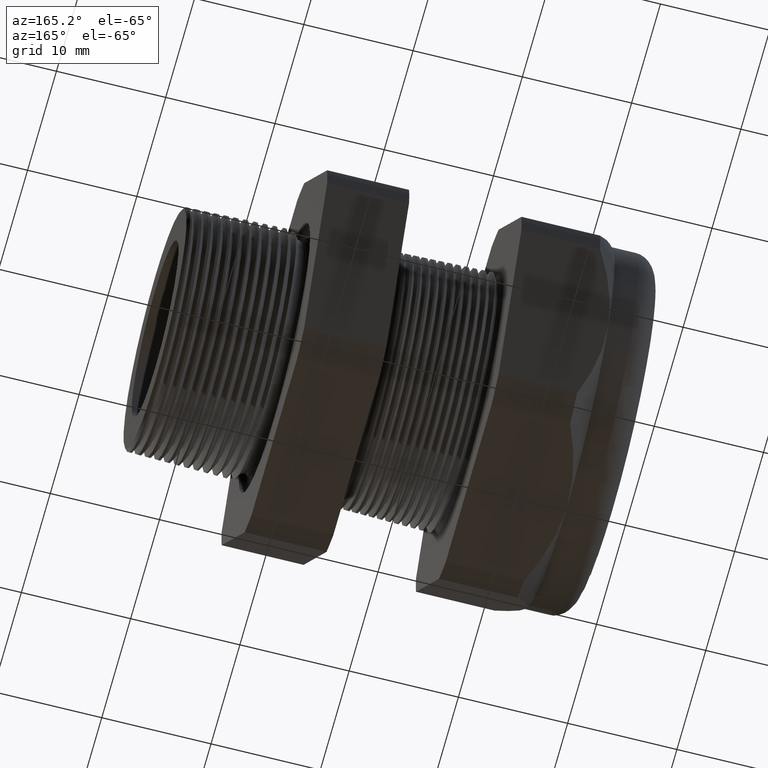
[diagram: clean part render]
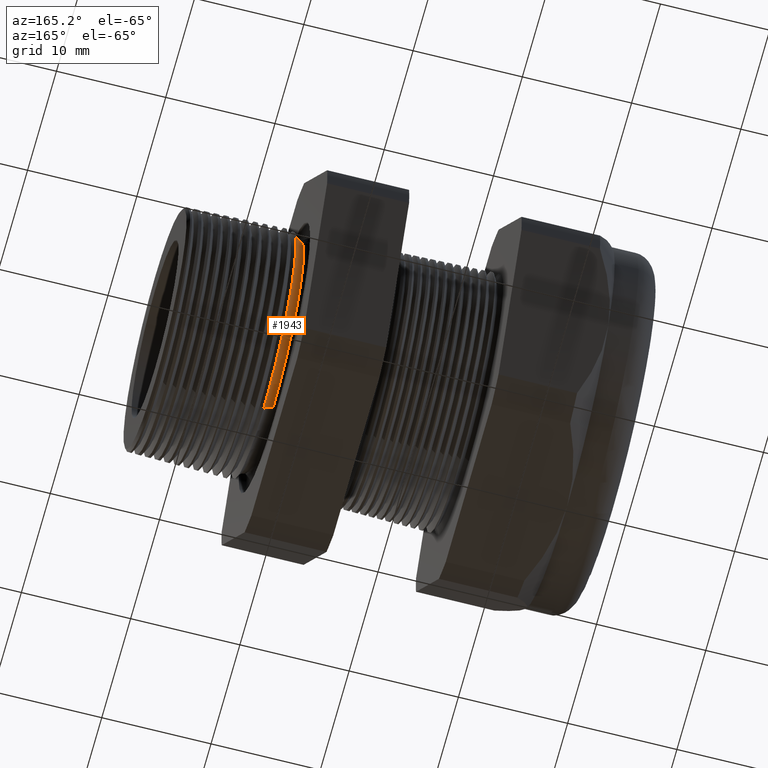
[diagram: same view with one face highlighted and labeled with its STEP entity id]
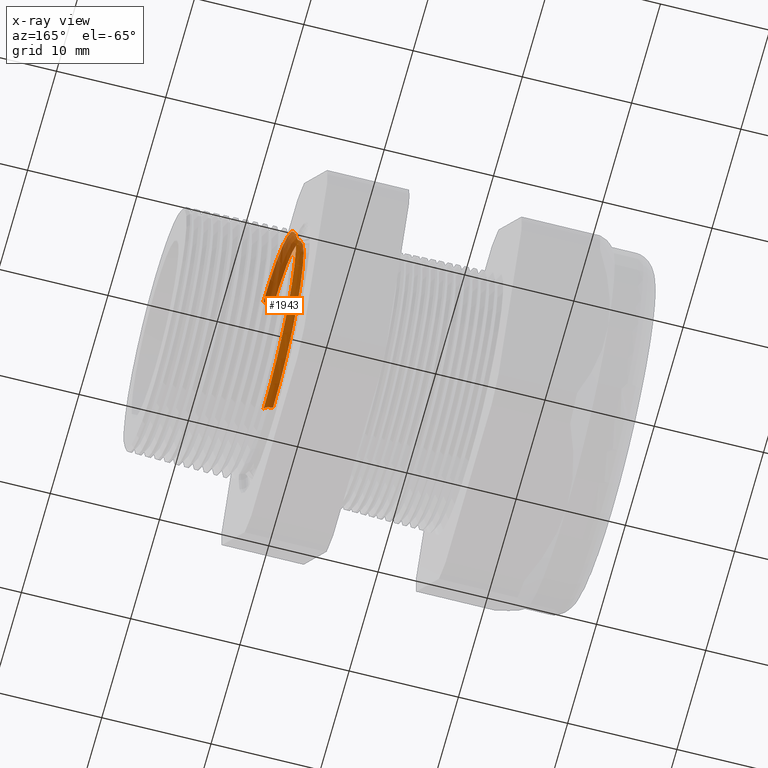
[diagram: x-ray of the same camera — body ghosted, the highlighted face saturated]
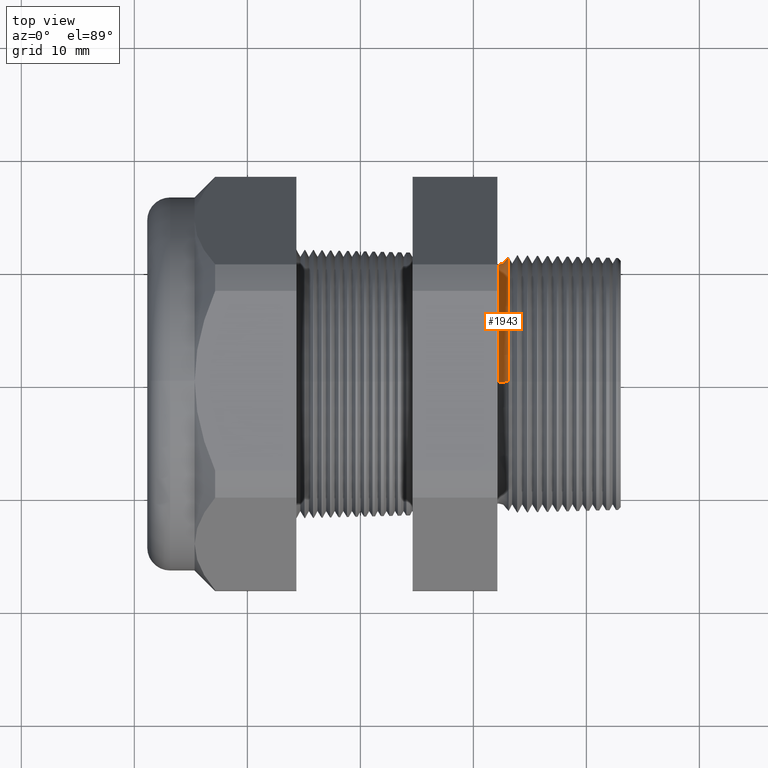
[diagram: same view with one face highlighted and labeled with its STEP entity id]
A machine part, auxiliary view. The second image highlights one B-rep face of the part: STEP entity #1943.
The next image is the same camera in x-ray: the body ghosted, the highlighted face saturated — about 32% of this face is hidden behind the body in this view.
A second angle (top view) of the same face is appended — the face is thin or edge-on in the first view.
In plain terms, the highlighted toroidal blend (fillet) surface has major radius 11.4722 mm and minor (blend) radius 0.889 mm.
Its self-contained STEP definition (entity closure, byte-faithful):
#1892 = ORIENTED_EDGE ( 'NONE', *, *, #1922, .T. ) ;
#1915 = ORIENTED_EDGE ( 'NONE', *, *, #1932, .F. ) ;
#1916 = ORIENTED_EDGE ( 'NONE', *, *, #1935, .T. ) ;
#1922 = EDGE_CURVE ( 'NONE', #1961, #1939, #4414, .T. ) ;
#1924 = VERTEX_POINT ( 'NONE', #4410 ) ;
#1931 = VERTEX_POINT ( 'NONE', #4460 ) ;
#1932 = EDGE_CURVE ( 'NONE', #1961, #1924, #4459, .T. ) ;
#1935 = EDGE_CURVE ( 'NONE', #1939, #1931, #4452, .T. ) ;
#1937 = EDGE_LOOP ( 'NONE', ( #1892, #1916, #1959, #1915 ) ) ;
#1939 = VERTEX_POINT ( 'NONE', #4437 ) ;
#1943 = ADVANCED_FACE ( 'NONE', ( #4431 ), #4430, .F. ) ;
#1955 = EDGE_CURVE ( 'NONE', #1924, #1931, #4471, .T. ) ;
#1959 = ORIENTED_EDGE ( 'NONE', *, *, #1955, .F. ) ;
#1961 = VERTEX_POINT ( 'NONE', #4462 ) ;
#4410 = CARTESIAN_POINT ( 'NONE',  ( -0.2708463023710467300, 0.0000000000000000000, 0.4440114480048295600 ) ) ;
#4411 = DIRECTION ( 'NONE',  ( 0.0000000000000000000, 0.0000000000000000000, -1.000000000000000000 ) ) ;
#4412 = DIRECTION ( 'NONE',  ( 0.0000000000000000000, -1.000000000000000000, 0.0000000000000000000 ) ) ;
#4413 = AXIS2_PLACEMENT_3D ( 'NONE', #4419, #4412, #4411 ) ;
#4414 = CIRCLE ( 'NONE', #4413, 0.03499999999999996900 ) ;
#4419 = CARTESIAN_POINT ( 'NONE',  ( -0.3049999999999999400, 0.0000000000000000000, -0.4516616073672216100 ) ) ;
#4430 = TOROIDAL_SURFACE ( 'NONE', #4493, 0.4516616073672216100, 0.03499999999999994800 ) ;
#4431 = FACE_OUTER_BOUND ( 'NONE', #1937, .T. ) ;
#4437 = CARTESIAN_POINT ( 'NONE',  ( -0.3049999999999999400, 0.0000000000000000000, -0.4166616073672216300 ) ) ;
#4448 = DIRECTION ( 'NONE',  ( 0.0000000000000000000, 0.0000000000000000000, -1.000000000000000000 ) ) ;
#4449 = DIRECTION ( 'NONE',  ( 1.000000000000000000, 0.0000000000000000000, 0.0000000000000000000 ) ) ;
#4450 = CARTESIAN_POINT ( 'NONE',  ( -0.3049999999999999400, 0.0000000000000000000, 0.0000000000000000000 ) ) ;
#4451 = AXIS2_PLACEMENT_3D ( 'NONE', #4450, #4449, #4448 ) ;
#4452 = CIRCLE ( 'NONE', #4451, 0.4166616073672216300 ) ;
#4455 = DIRECTION ( 'NONE',  ( 0.0000000000000000000, 0.0000000000000000000, 1.000000000000000000 ) ) ;
#4456 = DIRECTION ( 'NONE',  ( 1.000000000000000000, 0.0000000000000000000, 0.0000000000000000000 ) ) ;
#4457 = CARTESIAN_POINT ( 'NONE',  ( -0.2708463023710467300, 0.0000000000000000000, 0.0000000000000000000 ) ) ;
#4458 = AXIS2_PLACEMENT_3D ( 'NONE', #4457, #4456, #4455 ) ;
#4459 = CIRCLE ( 'NONE', #4458, 0.4440114480048295600 ) ;
#4460 = CARTESIAN_POINT ( 'NONE',  ( -0.3049999999999999400, 5.102633037898592000E-017, 0.4166616073672216300 ) ) ;
#4462 = CARTESIAN_POINT ( 'NONE',  ( -0.2708463023710467300, 5.437571985838959600E-017, -0.4440114480048295600 ) ) ;
#4468 = DIRECTION ( 'NONE',  ( 0.0000000000000000000, 1.224646799147352700E-016, 1.000000000000000000 ) ) ;
#4469 = DIRECTION ( 'NONE',  ( 0.0000000000000000000, 1.000000000000000000, -1.224646799147353200E-016 ) ) ;
#4470 = AXIS2_PLACEMENT_3D ( 'NONE', #4476, #4469, #4468 ) ;
#4471 = CIRCLE ( 'NONE', #4470, 0.03499999999999996900 ) ;
#4476 = CARTESIAN_POINT ( 'NONE',  ( -0.3049999999999999400, 5.531259417600165900E-017, 0.4516616073672216100 ) ) ;
#4490 = DIRECTION ( 'NONE',  ( 0.0000000000000000000, 0.0000000000000000000, -1.000000000000000000 ) ) ;
#4491 = DIRECTION ( 'NONE',  ( 1.000000000000000000, 0.0000000000000000000, 0.0000000000000000000 ) ) ;
#4492 = CARTESIAN_POINT ( 'NONE',  ( -0.3049999999999999400, 0.0000000000000000000, 0.0000000000000000000 ) ) ;
#4493 = AXIS2_PLACEMENT_3D ( 'NONE', #4492, #4491, #4490 ) ;